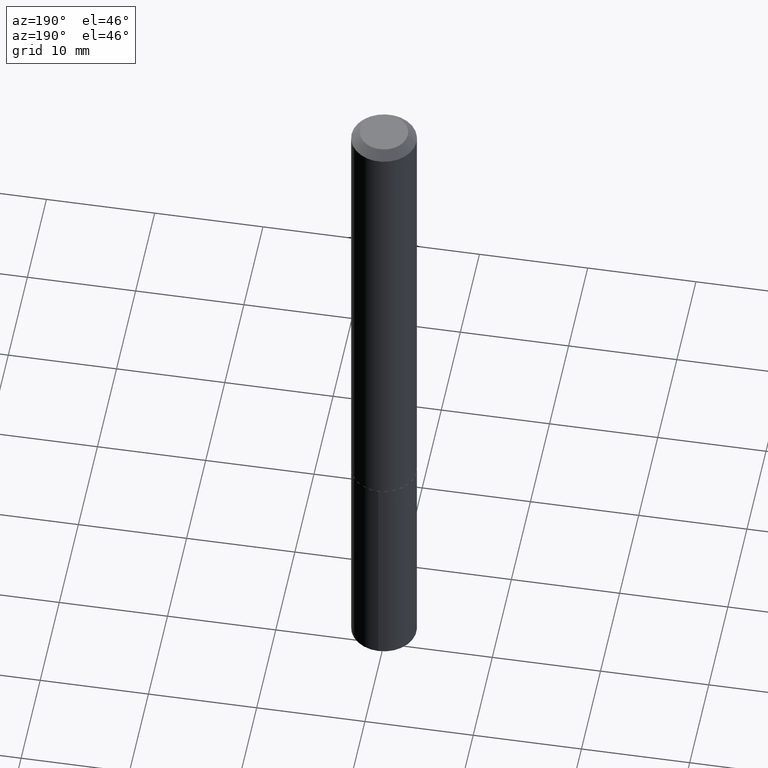
[diagram: clean part render]
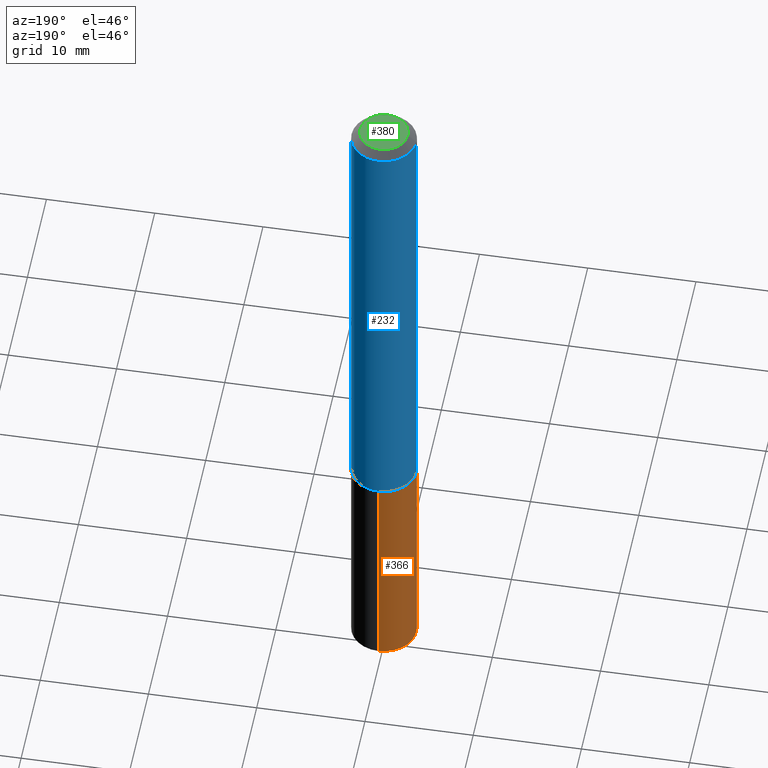
[diagram: same view with three faces highlighted in distinct colors, each labeled with its STEP entity id]
A machine part, auxiliary view with three faces highlighted in distinct colors.
Their STEP definitions:

[orange] entity #366 — the highlighted cylindrical surface (edge-blend (fillet) strip) has radius 2.9997 mm, axis along (-0, 0, 1).
#1 = LINE ( 'NONE', #140, #255 ) ;
#19 = CARTESIAN_POINT ( 'NONE',  ( -8.246878922347056641E-16, -0.1181000000000060474, -1.732199999999999074 ) ) ;
#21 = VERTEX_POINT ( 'NONE', #213 ) ;
#35 = DIRECTION ( 'NONE',  ( -2.446119298233268617E-29, 3.490549797206512511E-15, 1.000000000000000000 ) ) ;
#47 = ORIENTED_EDGE ( 'NONE', *, *, #361, .T. ) ;
#54 = AXIS2_PLACEMENT_3D ( 'NONE', #306, #190, #197 ) ;
#58 = EDGE_CURVE ( 'NONE', #62, #21, #386, .T. ) ;
#62 = VERTEX_POINT ( 'NONE', #160 ) ;
#83 = AXIS2_PLACEMENT_3D ( 'NONE', #193, #100, #305 ) ;
#96 = CIRCLE ( 'NONE', #54, 0.1180999999999999966 ) ;
#100 = DIRECTION ( 'NONE',  ( -2.446119298233268617E-29, 3.490549797206512117E-15, 1.000000000000000000 ) ) ;
#113 = VERTEX_POINT ( 'NONE', #19 ) ;
#119 = VECTOR ( 'NONE', #247, 39.37007874015748143 ) ;
#121 = EDGE_CURVE ( 'NONE', #21, #113, #382, .T. ) ;
#128 = CARTESIAN_POINT ( 'NONE',  ( 8.391509709327204997E-16, 0.1180999999999939598, -1.732200000000000184 ) ) ;
#140 = CARTESIAN_POINT ( 'NONE',  ( -8.246878922347056641E-16, -0.1181000000000060474, -1.732199999999999074 ) ) ;
#142 = CYLINDRICAL_SURFACE ( 'NONE', #83, 0.1180999999999999966 ) ;
#160 = CARTESIAN_POINT ( 'NONE',  ( 8.391509709327407143E-16, 0.1180999999999910732, -2.555415115333162568 ) ) ;
#170 = DIRECTION ( 'NONE',  ( -6.982962677686265922E-15, -1.000000000000000000, 4.626330217890369336E-15 ) ) ;
#183 = AXIS2_PLACEMENT_3D ( 'NONE', #308, #217, #170 ) ;
#190 = DIRECTION ( 'NONE',  ( -2.446119298233268617E-29, 3.490549797206512117E-15, 1.000000000000000000 ) ) ;
#193 = CARTESIAN_POINT ( 'NONE',  ( 4.236041066073892487E-29, -6.047943975144095988E-15, -1.732199999999999518 ) ) ;
#196 = ORIENTED_EDGE ( 'NONE', *, *, #121, .F. ) ;
#197 = DIRECTION ( 'NONE',  ( -6.982962677686265922E-15, -1.000000000000000000, 4.626330217890369336E-15 ) ) ;
#213 = CARTESIAN_POINT ( 'NONE',  ( 8.391509709327408129E-16, 0.1180999999999939598, -1.732200000000000184 ) ) ;
#217 = DIRECTION ( 'NONE',  ( -2.446119298233268617E-29, 3.490549797206512117E-15, 1.000000000000000000 ) ) ;
#225 = CARTESIAN_POINT ( 'NONE',  ( -8.246878922346856468E-16, -0.1181000000000089339, -2.555415115333161236 ) ) ;
#226 = VERTEX_POINT ( 'NONE', #225 ) ;
#230 = EDGE_LOOP ( 'NONE', ( #292, #47, #289, #196 ) ) ;
#247 = DIRECTION ( 'NONE',  ( -2.446119298233268617E-29, 3.490549797206512511E-15, 1.000000000000000000 ) ) ;
#255 = VECTOR ( 'NONE', #35, 39.37007874015748143 ) ;
#279 = FACE_OUTER_BOUND ( 'NONE', #230, .T. ) ;
#289 = ORIENTED_EDGE ( 'NONE', *, *, #352, .T. ) ;
#292 = ORIENTED_EDGE ( 'NONE', *, *, #58, .F. ) ;
#305 = DIRECTION ( 'NONE',  ( -6.982962677686265922E-15, -1.000000000000000000, 4.626330217890369336E-15 ) ) ;
#306 = CARTESIAN_POINT ( 'NONE',  ( 6.249723446287668181E-29, -8.921417329027599768E-15, -2.555415115333162124 ) ) ;
#308 = CARTESIAN_POINT ( 'NONE',  ( 4.236041066073892487E-29, -6.047943975144095988E-15, -1.732199999999999518 ) ) ;
#352 = EDGE_CURVE ( 'NONE', #226, #113, #1, .T. ) ;
#361 = EDGE_CURVE ( 'NONE', #62, #226, #96, .T. ) ;
#366 = ADVANCED_FACE ( 'NONE', ( #279 ), #142, .T. ) ;
#382 = CIRCLE ( 'NONE', #183, 0.1180999999999999966 ) ;
#386 = LINE ( 'NONE', #128, #119 ) ;

[blue] entity #232 — the highlighted cylindrical surface (edge-blend (fillet) strip) has radius 2.9997 mm, axis along (-0, 0, 1).
#5 = AXIS2_PLACEMENT_3D ( 'NONE', #253, #105, #300 ) ;
#7 = ORIENTED_EDGE ( 'NONE', *, *, #218, .T. ) ;
#8 = DIRECTION ( 'NONE',  ( -2.445468806185136877E-29, 3.491481338843145188E-15, 1.000000000000000000 ) ) ;
#24 = ORIENTED_EDGE ( 'NONE', *, *, #92, .F. ) ;
#27 = EDGE_CURVE ( 'NONE', #78, #241, #337, .T. ) ;
#37 = EDGE_CURVE ( 'NONE', #78, #65, #248, .T. ) ;
#48 = CYLINDRICAL_SURFACE ( 'NONE', #5, 0.1181000000000001077 ) ;
#65 = VERTEX_POINT ( 'NONE', #387 ) ;
#68 = DIRECTION ( 'NONE',  ( -2.445468806185136877E-29, 3.491481338843145188E-15, 1.000000000000000000 ) ) ;
#78 = VERTEX_POINT ( 'NONE', #353 ) ;
#79 = DIRECTION ( 'NONE',  ( -2.445468806185136597E-29, 3.491481338843145583E-15, 1.000000000000000000 ) ) ;
#90 = CIRCLE ( 'NONE', #242, 0.1180999999999999966 ) ;
#92 = EDGE_CURVE ( 'NONE', #241, #125, #90, .T. ) ;
#105 = DIRECTION ( 'NONE',  ( -2.445468806185136597E-29, 3.491481338843145583E-15, 1.000000000000000000 ) ) ;
#125 = VERTEX_POINT ( 'NONE', #132 ) ;
#132 = CARTESIAN_POINT ( 'NONE',  ( -0.1180999999999999966, -2.238502542224082018E-15, -0.03125000000000020817 ) ) ;
#133 = DIRECTION ( 'NONE',  ( 1.000000000000000000, -6.982962677686266711E-15, 0.000000000000000000 ) ) ;
#144 = CARTESIAN_POINT ( 'NONE',  ( 0.1181000000000001077, -8.246878922347488542E-16, 5.758764772215005345E-30 ) ) ;
#152 = VECTOR ( 'NONE', #8, 39.37007874015748143 ) ;
#165 = LINE ( 'NONE', #222, #259 ) ;
#171 = FACE_OUTER_BOUND ( 'NONE', #239, .T. ) ;
#200 = DIRECTION ( 'NONE',  ( 1.000000000000000000, -6.982962677686269077E-15, 0.000000000000000000 ) ) ;
#201 = ORIENTED_EDGE ( 'NONE', *, *, #37, .T. ) ;
#218 = EDGE_CURVE ( 'NONE', #65, #125, #165, .T. ) ;
#222 = CARTESIAN_POINT ( 'NONE',  ( -0.1181000000000001077, 8.391509709326790846E-16, -5.809262341591049389E-30 ) ) ;
#232 = ADVANCED_FACE ( 'NONE', ( #171 ), #48, .T. ) ;
#239 = EDGE_LOOP ( 'NONE', ( #201, #7, #24, #311 ) ) ;
#241 = VERTEX_POINT ( 'NONE', #269 ) ;
#242 = AXIS2_PLACEMENT_3D ( 'NONE', #276, #278, #133 ) ;
#248 = CIRCLE ( 'NONE', #362, 0.1181000000000001909 ) ;
#253 = CARTESIAN_POINT ( 'NONE',  ( 0.000000000000000000, 0.000000000000000000, 0.000000000000000000 ) ) ;
#258 = CARTESIAN_POINT ( 'NONE',  ( 4.234818331670800246E-29, -6.046198234474674485E-15, -1.731699999999999795 ) ) ;
#259 = VECTOR ( 'NONE', #68, 39.37007874015748143 ) ;
#269 = CARTESIAN_POINT ( 'NONE',  ( 0.1180999999999999966, -9.337966840735971660E-16, -0.03125000000000020817 ) ) ;
#276 = CARTESIAN_POINT ( 'NONE',  ( 7.642090019328602662E-31, -1.091087918388490267E-16, -0.03125000000000020817 ) ) ;
#278 = DIRECTION ( 'NONE',  ( -2.445468806185136597E-29, 3.491481338843145583E-15, 1.000000000000000000 ) ) ;
#300 = DIRECTION ( 'NONE',  ( 1.000000000000000000, -6.982962677686266711E-15, 4.876176775795935793E-29 ) ) ;
#311 = ORIENTED_EDGE ( 'NONE', *, *, #27, .F. ) ;
#337 = LINE ( 'NONE', #144, #152 ) ;
#353 = CARTESIAN_POINT ( 'NONE',  ( 0.1181000000000001909, -6.870886126709424325E-15, -1.731699999999999795 ) ) ;
#362 = AXIS2_PLACEMENT_3D ( 'NONE', #258, #79, #200 ) ;
#387 = CARTESIAN_POINT ( 'NONE',  ( -0.1181000000000001909, -5.207047263541994710E-15, -1.731699999999999795 ) ) ;

[green] entity #380 — the highlighted planar face has unit normal (0, -0, -1).
#11 = VERTEX_POINT ( 'NONE', #246 ) ;
#15 = DIRECTION ( 'NONE',  ( 1.000000000000000000, -6.982962677686266711E-15, 4.876232708448512900E-29 ) ) ;
#16 = EDGE_CURVE ( 'NONE', #240, #11, #168, .T. ) ;
#45 = DIRECTION ( 'NONE',  ( 2.438088387897960049E-29, -3.491481338843145188E-15, -1.000000000000000000 ) ) ;
#46 = AXIS2_PLACEMENT_3D ( 'NONE', #126, #209, #15 ) ;
#66 = DIRECTION ( 'NONE',  ( 1.000000000000000000, -6.982962677686266711E-15, 4.876232708448512900E-29 ) ) ;
#67 = AXIS2_PLACEMENT_3D ( 'NONE', #97, #131, #66 ) ;
#94 = CARTESIAN_POINT ( 'NONE',  ( -0.08684999999999999665, 6.610247044764755977E-16, 1.206277097155711909E-18 ) ) ;
#97 = CARTESIAN_POINT ( 'NONE',  ( -2.949913012720688878E-47, 4.211693974208522336E-33, 1.206277097160143859E-18 ) ) ;
#123 = ORIENTED_EDGE ( 'NONE', *, *, #16, .T. ) ;
#126 = CARTESIAN_POINT ( 'NONE',  ( -2.949913012720688878E-47, 4.211693974208522336E-33, 1.206277097160143859E-18 ) ) ;
#131 = DIRECTION ( 'NONE',  ( -2.445468806185136597E-29, 3.491481338843145583E-15, 1.000000000000000000 ) ) ;
#155 = EDGE_LOOP ( 'NONE', ( #123, #205 ) ) ;
#168 = CIRCLE ( 'NONE', #67, 0.08684999999999999665 ) ;
#172 = EDGE_CURVE ( 'NONE', #11, #240, #294, .T. ) ;
#191 = DIRECTION ( 'NONE',  ( -1.000000000000000000, 6.982962677686265922E-15, -4.876176775795935793E-29 ) ) ;
#205 = ORIENTED_EDGE ( 'NONE', *, *, #172, .T. ) ;
#209 = DIRECTION ( 'NONE',  ( -2.445468806185136597E-29, 3.491481338843145583E-15, 1.000000000000000000 ) ) ;
#240 = VERTEX_POINT ( 'NONE', #94 ) ;
#246 = CARTESIAN_POINT ( 'NONE',  ( 0.08684999999999999665, -7.575839282410621061E-16, 1.206277097164912654E-18 ) ) ;
#257 = PLANE ( 'NONE',  #342 ) ;
#294 = CIRCLE ( 'NONE', #46, 0.08684999999999999665 ) ;
#299 = CARTESIAN_POINT ( 'NONE',  ( -1.474956506360344439E-47, 2.105846987104261168E-33, 6.031385485800719294E-19 ) ) ;
#342 = AXIS2_PLACEMENT_3D ( 'NONE', #299, #45, #191 ) ;
#363 = FACE_OUTER_BOUND ( 'NONE', #155, .T. ) ;
#380 = ADVANCED_FACE ( 'NONE', ( #363 ), #257, .F. ) ;